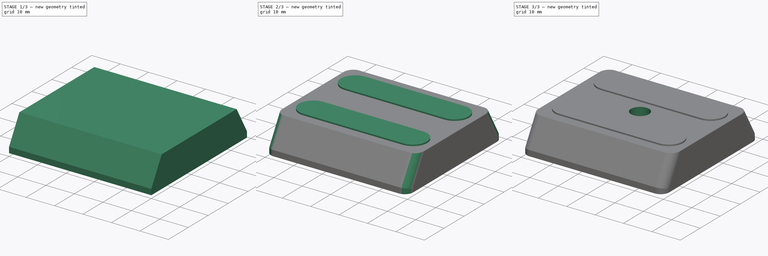
[diagram: build sequence overview — one tinted view per stage of 3, left to right]
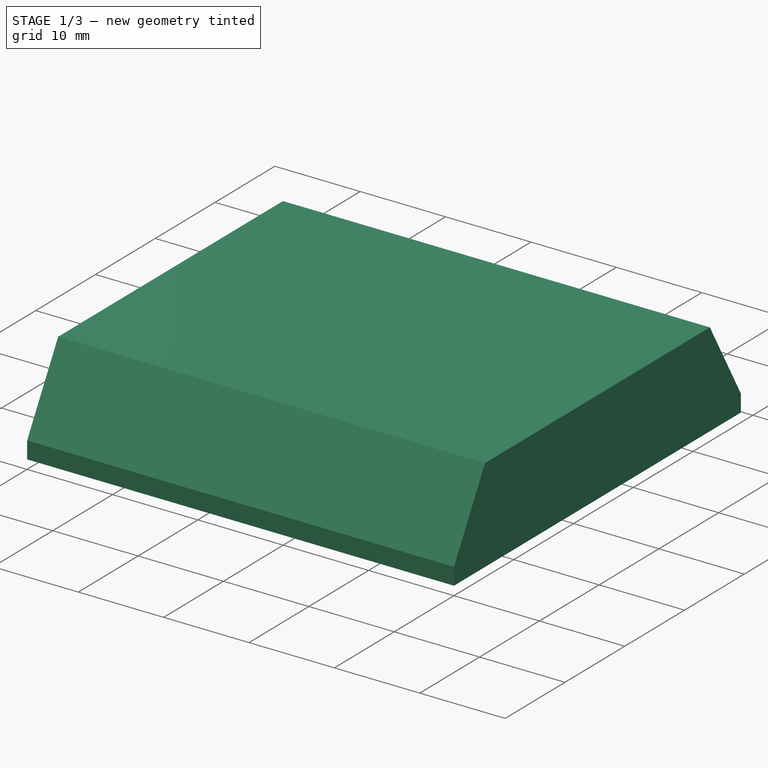
[diagram: stage 1 of 3 — iso view after this stage's code; geometry added in this stage tinted green]
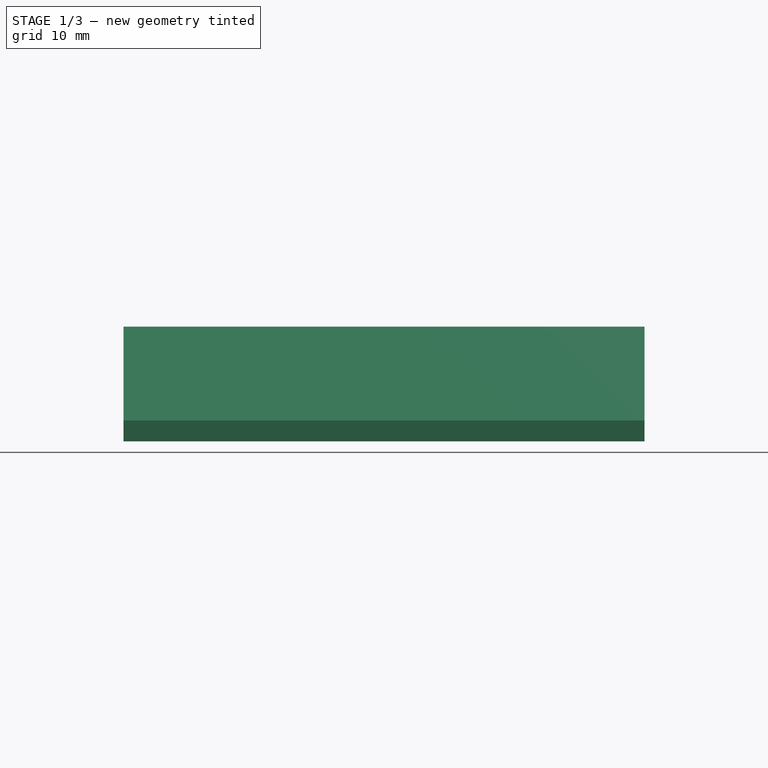
[diagram: stage 1 of 3 — front view after this stage's code; geometry added in this stage tinted green]
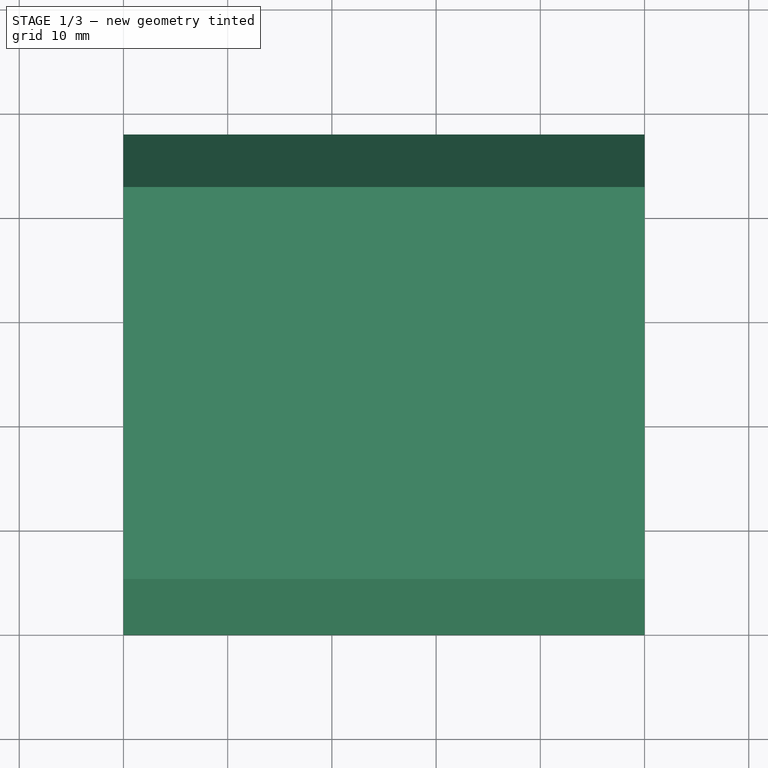
[diagram: stage 1 of 3 — top view after this stage's code; geometry added in this stage tinted green]
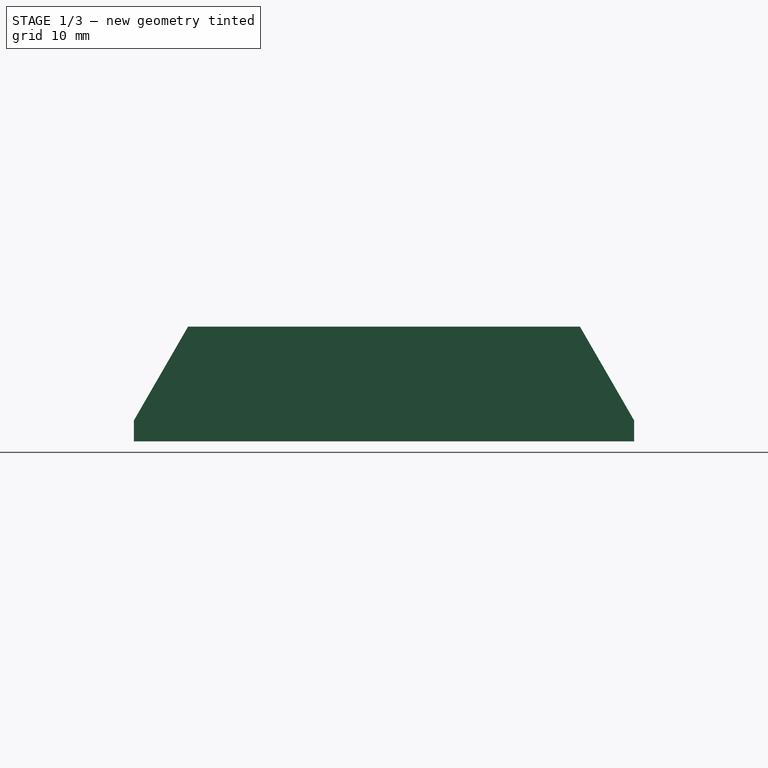
[diagram: stage 1 of 3 — right view after this stage's code; geometry added in this stage tinted green]
FCSTD DOCUMENT  (FreeCAD 0.21R33771 (Git))
Label: benro-tripod-mount
License: All rights reserved
LicenseURL: http://en.wikipedia.org/wiki/All_rights_reserved
objects: Sketcher::SketchObject×4, PartDesign::Pad×2, PartDesign::Pocket×2, PartDesign::Chamfer×1, PartDesign::Fillet×1, PartDesign::Plane×1, PartDesign::Body×1
note: 18 computed .brp shape members not serialized (recipe doc carries the construction recipe); baked Part::Feature solids carry a one-line shape summary decoded from their .brp

FEATURE [Sketcher::SketchObject] Sketch  label="sketch_base"
  FullyConstrained = true
  MapMode = 5
  Support = -> [XY_Plane]
  sketch-geometry (5):
    g0: LineSegment StartX=0 StartY=0 StartZ=0 EndX=50 EndY=0 EndZ=0
    g1: LineSegment StartX=50 StartY=0 StartZ=0 EndX=50 EndY=48 EndZ=0
    g2: LineSegment StartX=0 StartY=0 StartZ=0 EndX=0 EndY=48 EndZ=0
    g3: LineSegment StartX=0 StartY=48 StartZ=0 EndX=50 EndY=48 EndZ=0
    g4: GeomPoint X=25 Y=24 Z=0
  constraints (14):
    c: Coincident(g0,g1)
    c: Horizontal(g0)
    c: Vertical(g1)
    c: Coincident(g0,g-1)
    c: DistanceX(g0,g0) = 50
    c: Coincident(g2,g0)
    c: PointOnObject(g2,g-2)
    c: Coincident(g3,g2)
    c: Coincident(g3,g1)
    c: Horizontal(g3)
    c: DistanceY(g1,g1) = 48
    c: Symmetric(g0,g1,g4)
    c: DistanceX(g0,g4) = 25  'center_x'
    c: DistanceY(g0,g4) = 24  'center_y'
FEATURE [PartDesign::Pad] Pad  label="pad_base"
  Direction = (0,0,1)
  Length = 11
  Length2 = 10
  Profile = -> Sketch
  ReferenceAxis = -> Sketch [N_Axis]
  Refine = true
  Type = 0
FEATURE [PartDesign::Chamfer] Chamfer  label="chamfer_base"
  Angle = 30
  Base = -> Pad [Edge4,Edge10]
  BaseFeature = -> Pad
  ChamferType = 2
  FlipDirection = false
  Refine = true
  Size = 9
  Size2 = 1
  SupportTransform = false
  UseAllEdges = false
  expr: Size = <<pad_base>>.Length - 2 mm
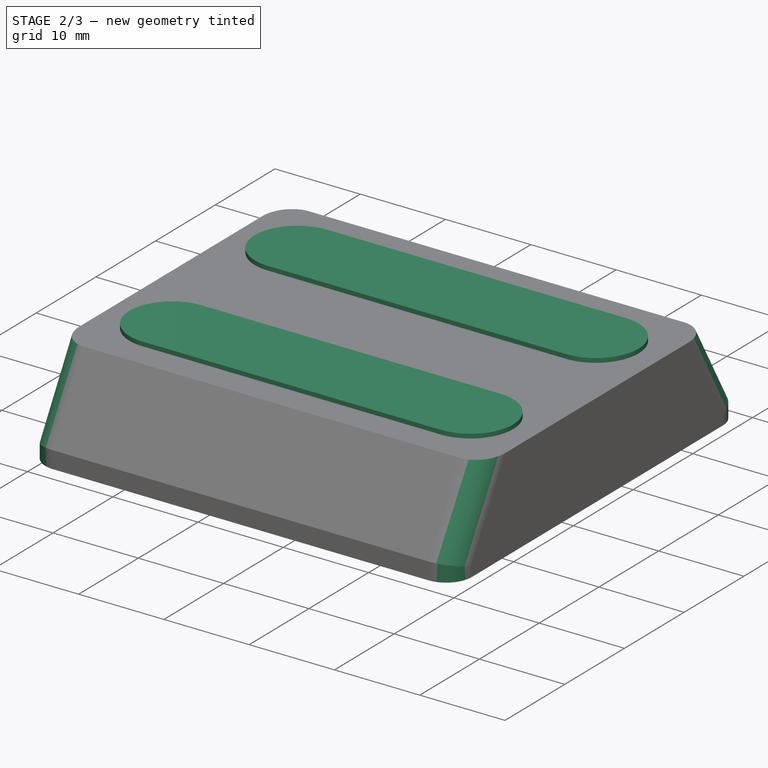
[diagram: stage 2 of 3 — iso view after this stage's code; geometry added in this stage tinted green]
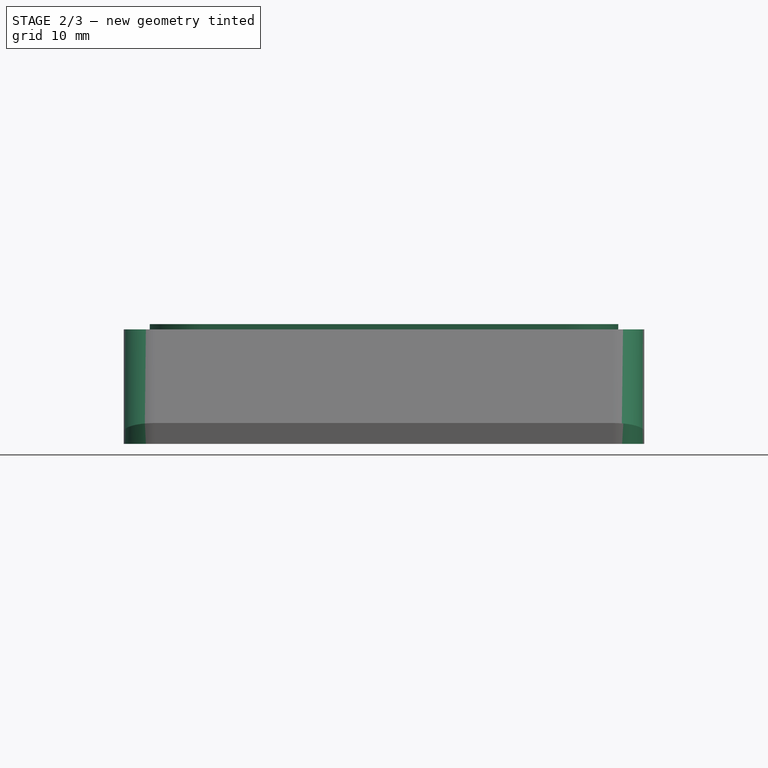
[diagram: stage 2 of 3 — front view after this stage's code; geometry added in this stage tinted green]
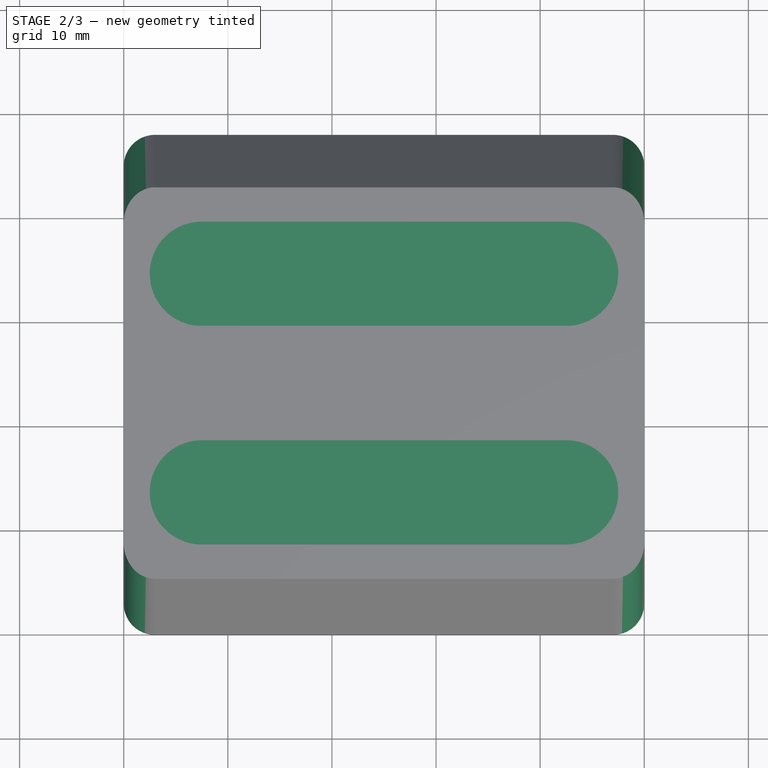
[diagram: stage 2 of 3 — top view after this stage's code; geometry added in this stage tinted green]
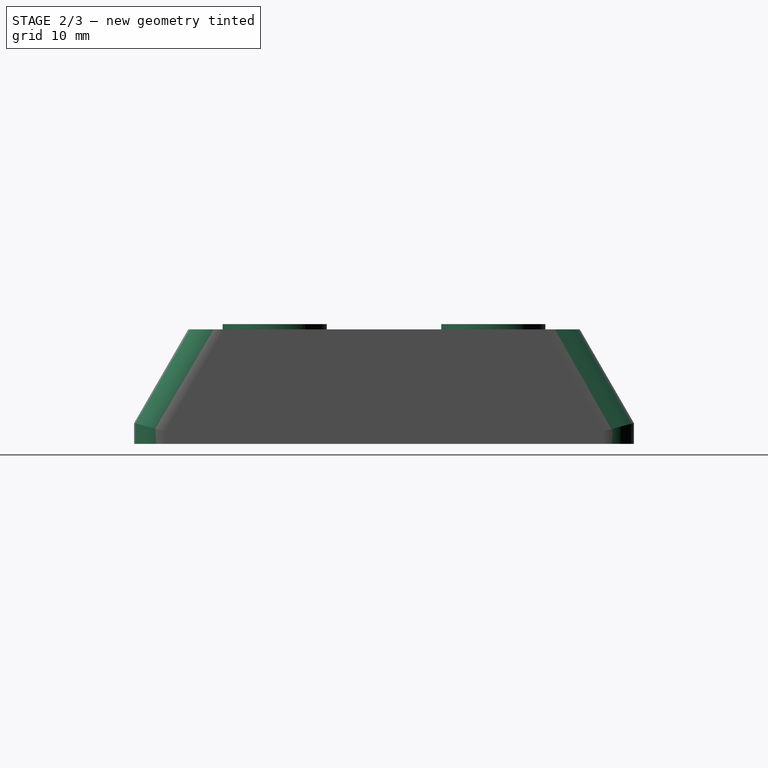
[diagram: stage 2 of 3 — right view after this stage's code; geometry added in this stage tinted green]
FEATURE [PartDesign::Fillet] Fillet  label="fillet_corner"
  Base = -> Chamfer [Edge11,Edge4,Edge16,Edge15,Edge9,Edge8,Edge5,Edge1]
  BaseFeature = -> Chamfer
  Radius = 3
  Refine = true
  SupportTransform = false
  UseAllEdges = false
FEATURE [PartDesign::Plane] DatumPlane  label="plan_top"
  AttachmentOffset = pos=(0,0,11) rot=(0,0,1;0rad)
  Length = 60
  MapMode = 5
  Placement = pos=(0,0,11) rot=(0,0,1;0rad)
  ResizeMode = 0
  Support = -> [XY_Plane]
  Width = 60
  expr: .AttachmentOffset.Base.z = <<pad_base>>.Length
FEATURE [Sketcher::SketchObject] Sketch001  label="sketch_small_pads"
  FullyConstrained = true
  MapMode = 5
  Placement = pos=(0,0,11) rot=(0,0,1;0rad)
  Support = -> [DatumPlane]
  expr: Constraints[45] = <<sketch_base>>.Constraints.center_x
  expr: Constraints[46] = <<sketch_base>>.Constraints.center_y
  sketch-geometry (20):
    g0: LineSegment StartX=7.5 StartY=39.5 StartZ=0 EndX=42.5 EndY=39.5 EndZ=0
    g1: LineSegment StartX=42.5 StartY=29.5 StartZ=0 EndX=7.5 EndY=29.5 EndZ=0
    g2: LineSegment StartX=7.5 StartY=18.5 StartZ=0 EndX=42.5 EndY=18.5 EndZ=0
    g3: LineSegment StartX=42.5 StartY=8.5 StartZ=0 EndX=7.5 EndY=8.5 EndZ=0
    g4: LineSegment StartX=42.5 StartY=29.5 StartZ=0 EndX=42.5 EndY=18.5 EndZ=0
    g5: LineSegment StartX=7.5 StartY=29.5 StartZ=0 EndX=7.5 EndY=18.5 EndZ=0
    g6: ArcOfCircle CenterX=7.5 CenterY=34.5 CenterZ=0 NormalX=0 NormalY=0 NormalZ=1 AngleXU=0 Radius=5 StartAngle=1.5708 EndAngle=4.71239
    g7: ArcOfCircle CenterX=7.5 CenterY=13.5 CenterZ=0 NormalX=0 NormalY=0 NormalZ=1 AngleXU=0 Radius=5 StartAngle=1.5708 EndAngle=4.71239
    g8: ArcOfCircle CenterX=42.5 CenterY=13.5 CenterZ=0 NormalX=0 NormalY=0 NormalZ=1 AngleXU=0 Radius=5 StartAngle=4.71239 EndAngle=7.85398
    g9: ArcOfCircle CenterX=42.5 CenterY=34.5 CenterZ=0 NormalX=0 NormalY=0 NormalZ=1 AngleXU=0 Radius=5 StartAngle=4.71239 EndAngle=7.85398
    g10: LineSegment StartX=7.5 StartY=29.5 StartZ=0 EndX=7.5 EndY=34.5 EndZ=0
    g11: LineSegment StartX=7.5 StartY=34.5 StartZ=0 EndX=7.5 EndY=39.5 EndZ=0
    g12: LineSegment StartX=42.5 StartY=39.5 StartZ=0 EndX=42.5 EndY=34.5 EndZ=0
    g13: LineSegment StartX=42.5 StartY=34.5 StartZ=0 EndX=42.5 EndY=29.5 EndZ=0
    g14: LineSegment StartX=42.5 StartY=18.5 StartZ=0 EndX=42.5 EndY=13.5 EndZ=0
    g15: LineSegment StartX=42.5 StartY=13.5 StartZ=0 EndX=42.5 EndY=8.5 EndZ=0
    g16: LineSegment StartX=7.5 StartY=8.5 StartZ=0 EndX=7.5 EndY=13.5 EndZ=0
    g17: LineSegment StartX=7.5 StartY=13.5 StartZ=0 EndX=7.5 EndY=18.5 EndZ=0
    g18: GeomPoint X=25 Y=24 Z=0
    g19: GeomPoint X=25 Y=24 Z=0
  constraints (50):
    c: Coincident(g0,g12)
    c: Coincident(g13,g1)
    c: Coincident(g1,g10)
    c: Coincident(g11,g0)
    c: Horizontal(g0)
    c: Horizontal(g1)
    c: Coincident(g2,g14)
    c: Coincident(g15,g3)
    c: Coincident(g3,g16)
    c: Coincident(g17,g2)
    c: Horizontal(g2)
    c: Horizontal(g3)
    c: Coincident(g4,g13)
    c: Coincident(g4,g2)
    c: Coincident(g5,g1)
    c: Coincident(g5,g2)
    c: Vertical(g5)
    c: Vertical(g4)
    c: DistanceX(g0,g0) = 35
    c: DistanceY(g13,g12) = 10
    c: Coincident(g6,g1)
    c: Coincident(g6,g0)
    c: Coincident(g7,g3)
    c: Coincident(g7,g2)
    c: Coincident(g8,g15)
    c: Coincident(g8,g2)
    c: Coincident(g9,g13)
    c: Coincident(g9,g0)
    c: Coincident(g10,g11)
    c: Vertical(g10)
    c: Vertical(g11)
    c: Coincident(g12,g13)
    c: Vertical(g12)
    c: Vertical(g13)
    c: Coincident(g14,g15)
    c: Vertical(g14)
    c: Vertical(g15)
    c: Coincident(g16,g17)
    c: Vertical(g16)
    c: Vertical(g17)
    c: Coincident(g16,g7)
    c: Coincident(g10,g6)
    c: Coincident(g12,g9)
    c: Coincident(g14,g8)
    c: Symmetric(g2,g1,g18)
    c: DistanceX(g-1,g19) = 25
    c: DistanceY(g-1,g19) = 24
    c: Coincident(g18,g19)
    c: DistanceY(g2,g1) = 11
    c: DistanceY(g3,g2) = 10
FEATURE [PartDesign::Pad] Pad001  label="small_pad"
  BaseFeature = -> Fillet
  Direction = (0,0,1)
  Length = 0.5
  Length2 = 10
  Profile = -> Sketch001
  ReferenceAxis = -> Sketch001 [N_Axis]
  Refine = true
  Type = 0
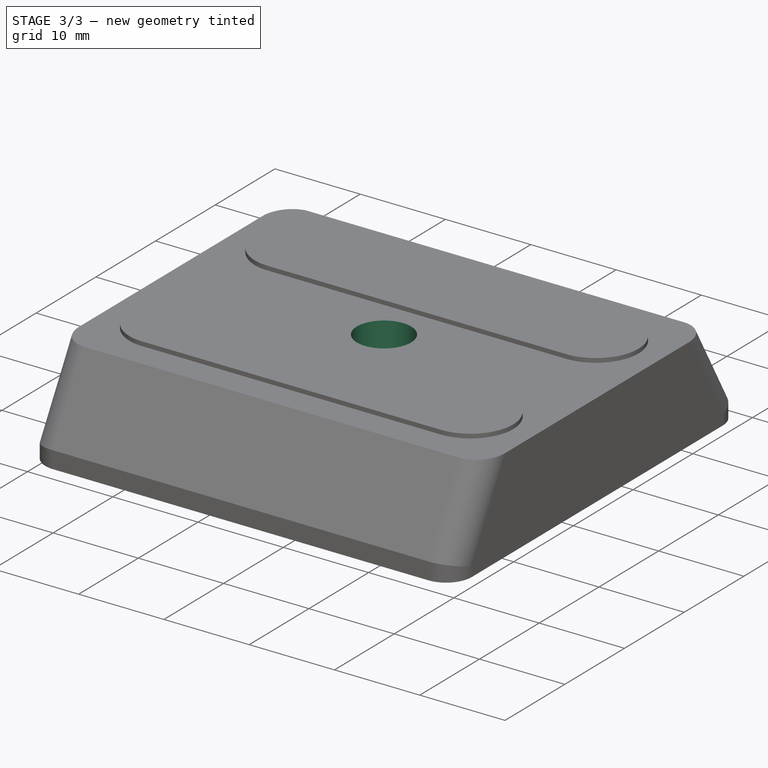
[diagram: stage 3 of 3 — iso view after this stage's code; geometry added in this stage tinted green]
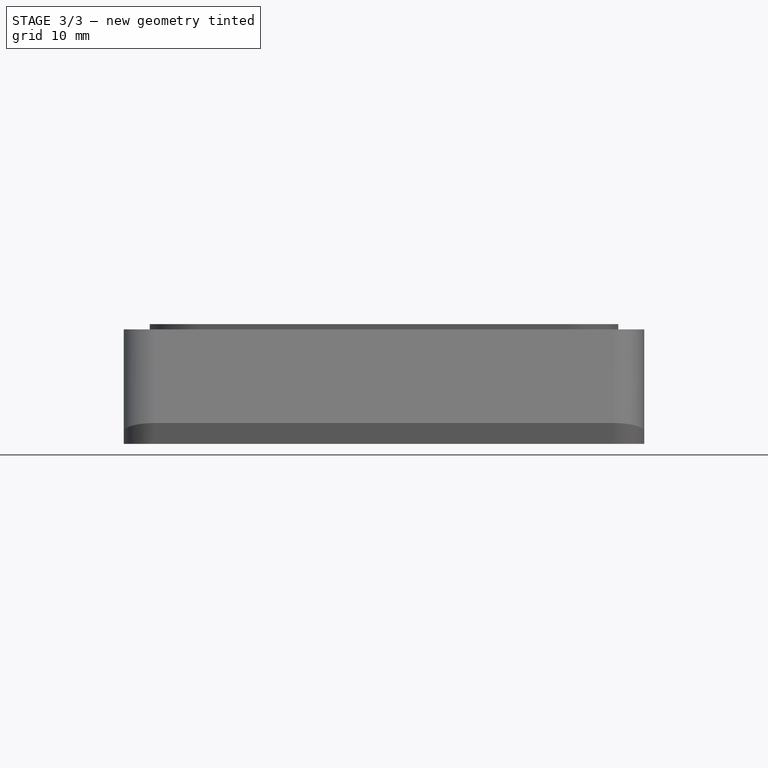
[diagram: stage 3 of 3 — front view after this stage's code; geometry added in this stage tinted green]
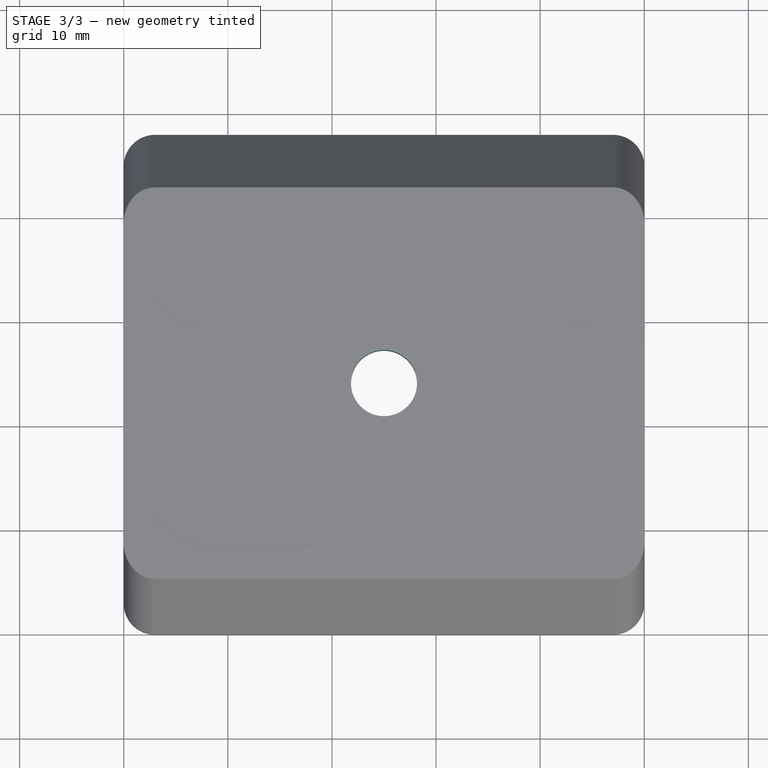
[diagram: stage 3 of 3 — top view after this stage's code; geometry added in this stage tinted green]
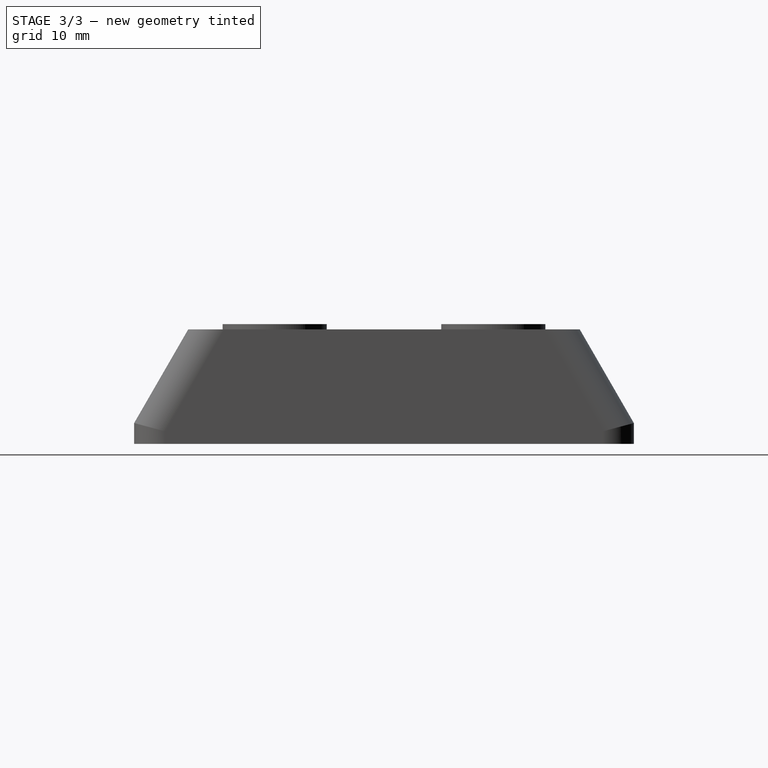
[diagram: stage 3 of 3 — right view after this stage's code; geometry added in this stage tinted green]
FEATURE [Sketcher::SketchObject] Sketch002  label="sketch_hole"
  FullyConstrained = true
  MapMode = 5
  Support = -> [XY_Plane]
  expr: Constraints[0] = <<sketch_base>>.Constraints.center_y
  expr: Constraints[1] = <<sketch_base>>.Constraints.center_x
  sketch-geometry (1):
    g0: Circle CenterX=25 CenterY=24 CenterZ=0 NormalX=0 NormalY=0 NormalZ=1 AngleXU=0 Radius=3.175
  constraints (3):
    c: DistanceY(g-1,g0) = 24
    c: DistanceX(g-1,g0) = 25
    c: Diameter(g0) = 6.35
FEATURE [PartDesign::Pocket] Pocket  label="packet_hole"
  BaseFeature = -> Pad001
  Direction = (0,0,-1)
  Length = 5
  Length2 = 5
  Profile = -> Sketch002
  ReferenceAxis = -> Sketch002 [N_Axis]
  Refine = true
  Reversed = true
  Type = 1
FEATURE [Sketcher::SketchObject] Sketch003  label="sketch_cavity"
  FullyConstrained = true
  MapMode = 5
  Support = -> [XY_Plane]
  expr: Constraints[7] = <<sketch_base>>.Constraints.center_y
  expr: Constraints[8] = <<sketch_base>>.Constraints.center_x
  sketch-geometry (13):
    g0: LineSegment StartX=6 StartY=37.5 StartZ=0 EndX=44 EndY=37.5 EndZ=0
    g1: LineSegment StartX=46 StartY=35.5 StartZ=0 EndX=46 EndY=12.5 EndZ=0
    g2: LineSegment StartX=44 StartY=10.5 StartZ=0 EndX=6 EndY=10.5 EndZ=0
    g3: LineSegment StartX=4 StartY=12.5 StartZ=0 EndX=4 EndY=35.5 EndZ=0
    g4: GeomPoint X=25 Y=24 Z=0
    g5: ArcOfCircle CenterX=6 CenterY=35.5 CenterZ=0 NormalX=0 NormalY=0 NormalZ=1 AngleXU=0 Radius=2 StartAngle=1.5708 EndAngle=3.14159
    g6: GeomPoint X=4 Y=37.5 Z=0
    g7: ArcOfCircle CenterX=44 CenterY=35.5 CenterZ=0 NormalX=0 NormalY=0 NormalZ=1 AngleXU=0 Radius=2 StartAngle=-1.8e-15 EndAngle=1.5708
    g8: GeomPoint X=46 Y=37.5 Z=0
    g9: ArcOfCircle CenterX=44 CenterY=12.5 CenterZ=0 NormalX=0 NormalY=0 NormalZ=1 AngleXU=0 Radius=2 StartAngle=4.71239 EndAngle=6.28319
    g10: GeomPoint X=46 Y=10.5 Z=0
    g11: ArcOfCircle CenterX=6 CenterY=12.5 CenterZ=0 NormalX=0 NormalY=0 NormalZ=1 AngleXU=0 Radius=2 StartAngle=3.14159 EndAngle=4.71239
    g12: GeomPoint X=4 Y=10.5 Z=0
  constraints (29):
    c: Horizontal(g0)
    c: Horizontal(g2)
    c: Vertical(g1)
    c: Vertical(g3)
    c: DistanceX(g6,g8) = 42
    c: DistanceY(g12,g6) = 27
    c: Symmetric(g12,g8,g4)
    c: DistanceY(g-1,g4) = 24
    c: DistanceX(g-1,g4) = 25
    c: PointOnObject(g6,g3)
    c: PointOnObject(g6,g0)
    c: Tangent(g3,g5) = 1.5708
    c: Tangent(g0,g5) = 1.5708
    c: Radius(g5) = 2
    c: PointOnObject(g8,g0)
    c: PointOnObject(g8,g1)
    c: Tangent(g0,g7) = 1.5708
    c: Tangent(g1,g7) = 1.5708
    c: PointOnObject(g10,g1)
    c: PointOnObject(g10,g2)
    c: Tangent(g1,g9) = 1.5708
    c: Tangent(g2,g9) = 1.5708
    c: PointOnObject(g12,g2)
    c: PointOnObject(g12,g3)
    c: Tangent(g2,g11) = 1.5708
    c: Tangent(g3,g11) = 1.5708
    c: Radius(g11) = 2
    c: Radius(g9) = 2
    c: Radius(g7) = 2
FEATURE [PartDesign::Pocket] Pocket001
  BaseFeature = -> Pocket
  Direction = (0,0,-1)
  Length = 6
  Length2 = 5
  Profile = -> Sketch003
  ReferenceAxis = -> Sketch003 [N_Axis]
  Refine = true
  Reversed = true
  Type = 0
FEATURE [PartDesign::Body] Body
  Group = -> [Sketch,Pad,Chamfer,Fillet,DatumPlane,Sketch001,Pad001,Sketch002,Pocket,Sketch003,Pocket001]
  Origin = -> Origin
  Tip = -> Pocket001
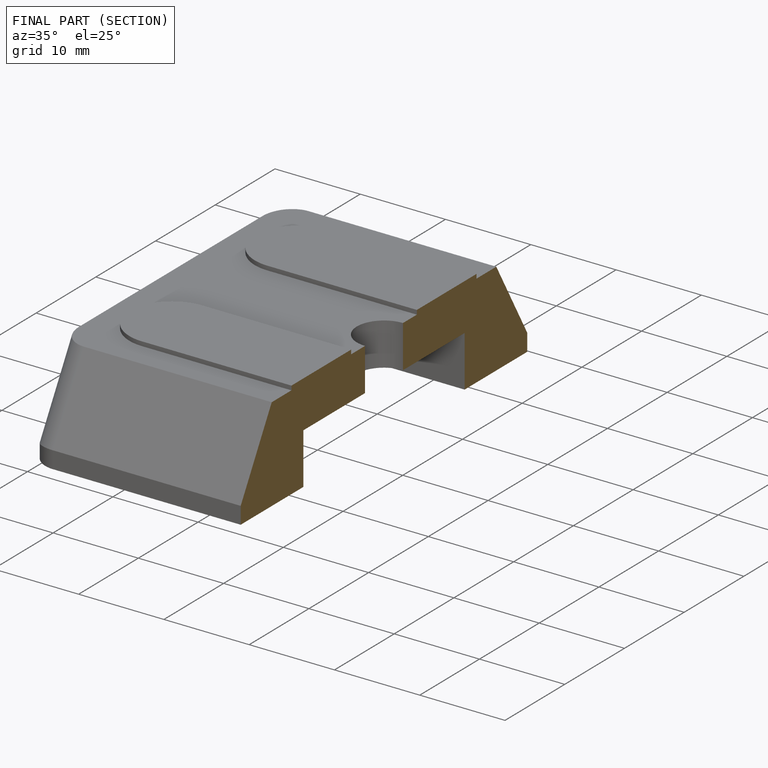
[diagram: finished part — half-section view (interior)]
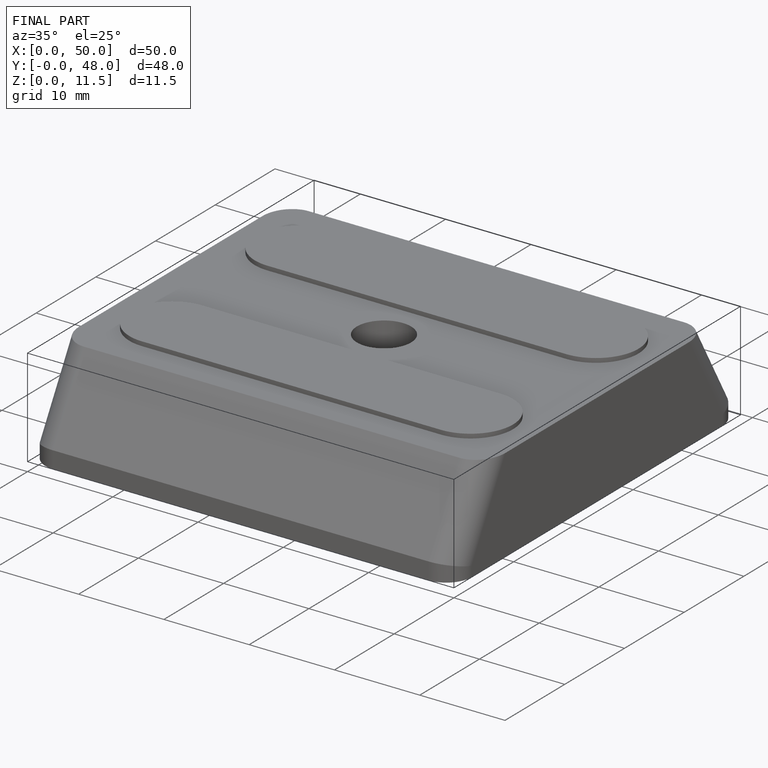
[diagram: finished part — iso view with bounding-box wireframe]
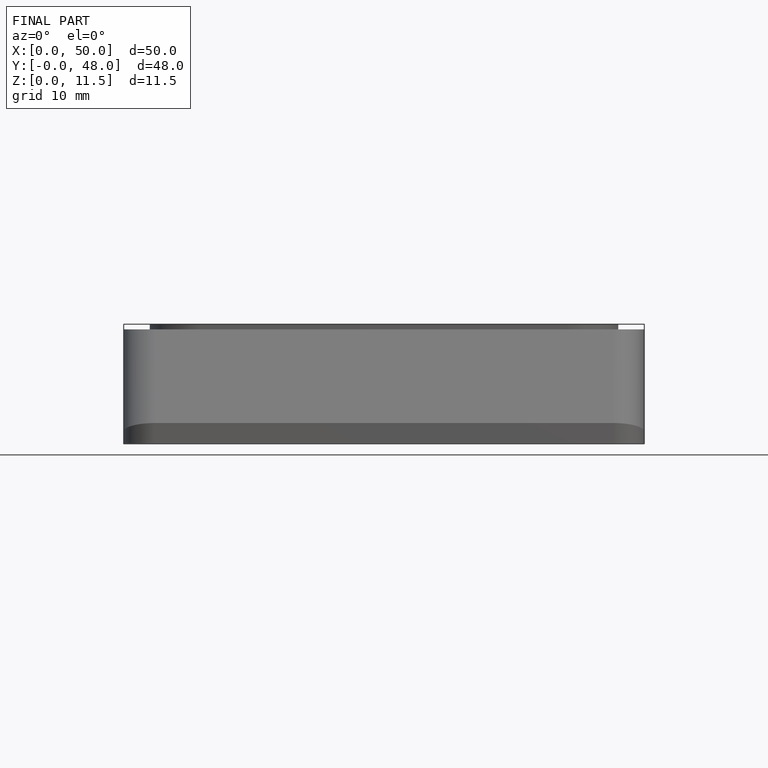
[diagram: finished part — front view with bounding-box wireframe]
